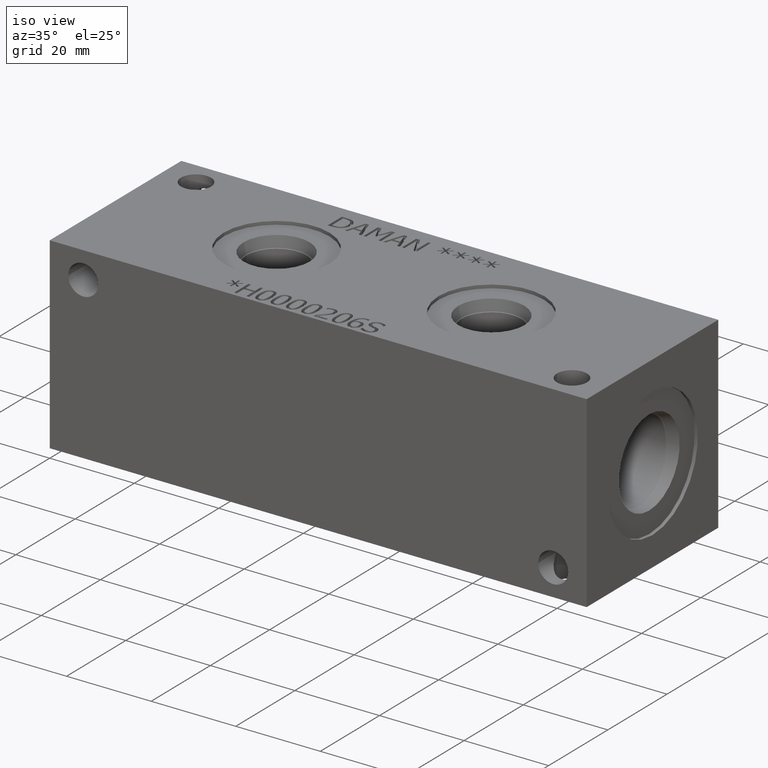
[diagram: clean part render]
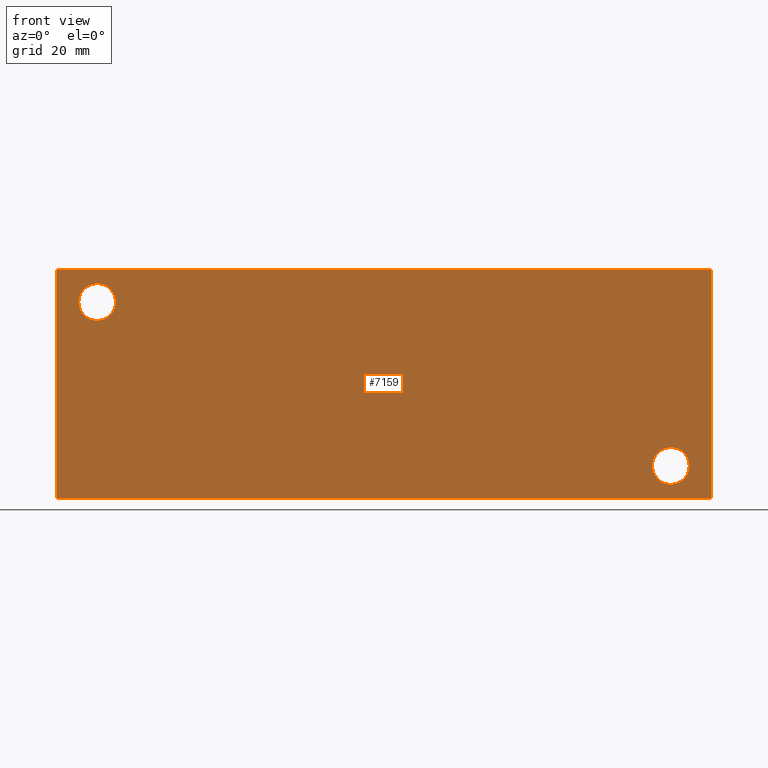
[diagram: tour spotlight — one face highlighted and labeled with its STEP entity id]
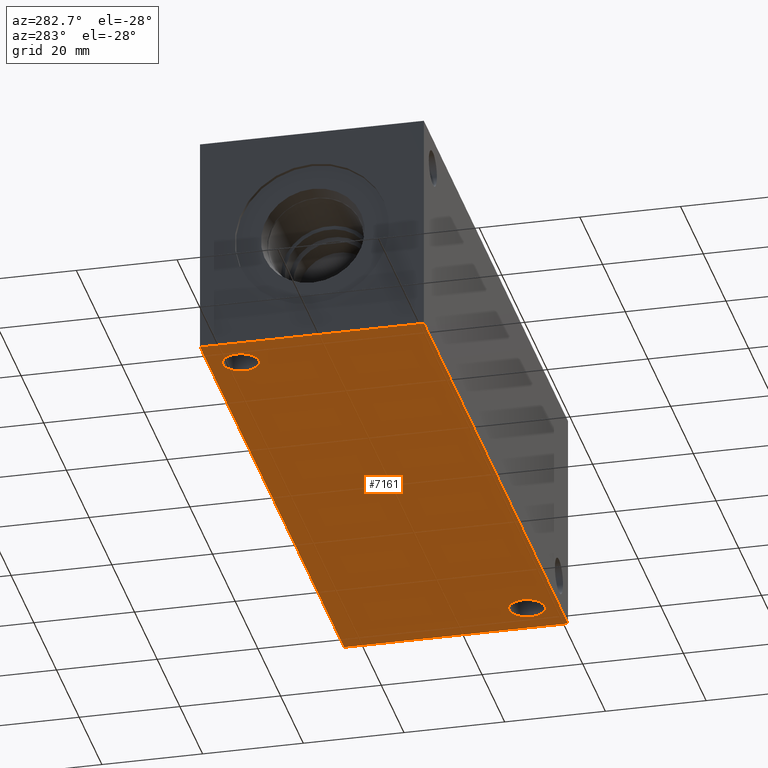
[diagram: tour spotlight — one face highlighted and labeled with its STEP entity id]
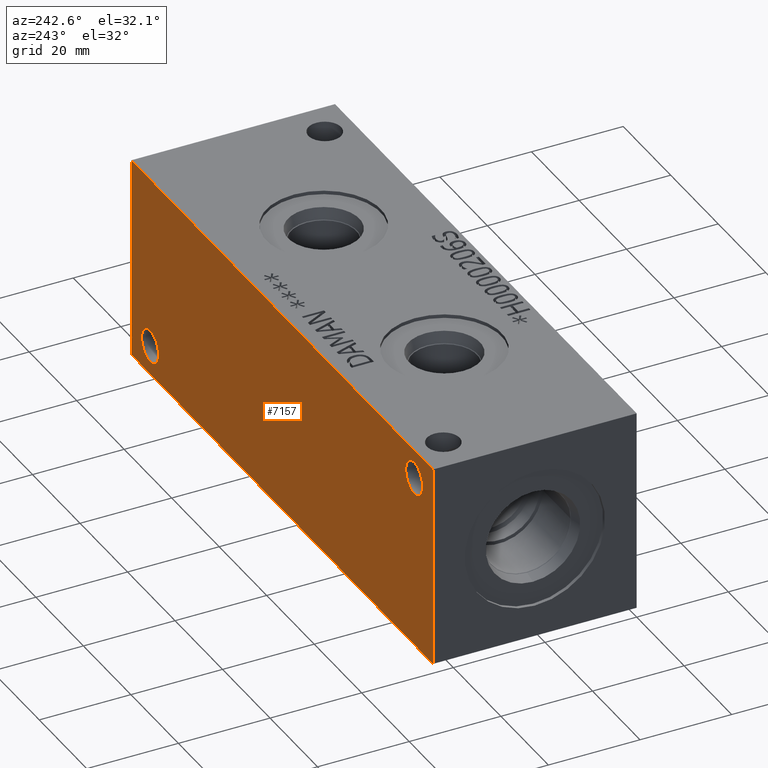
[diagram: tour spotlight — one face highlighted and labeled with its STEP entity id]
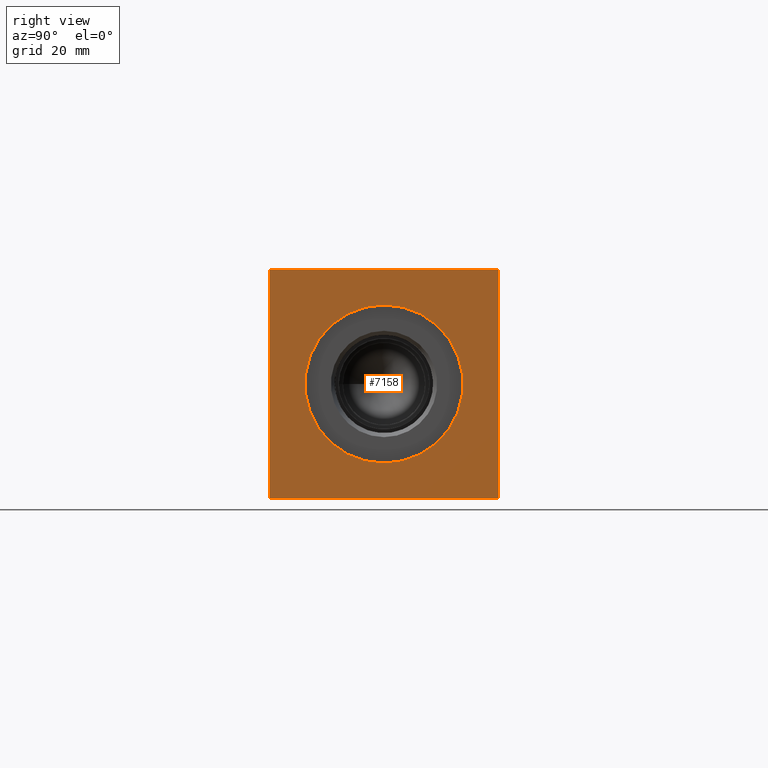
[diagram: tour spotlight — one face highlighted and labeled with its STEP entity id]
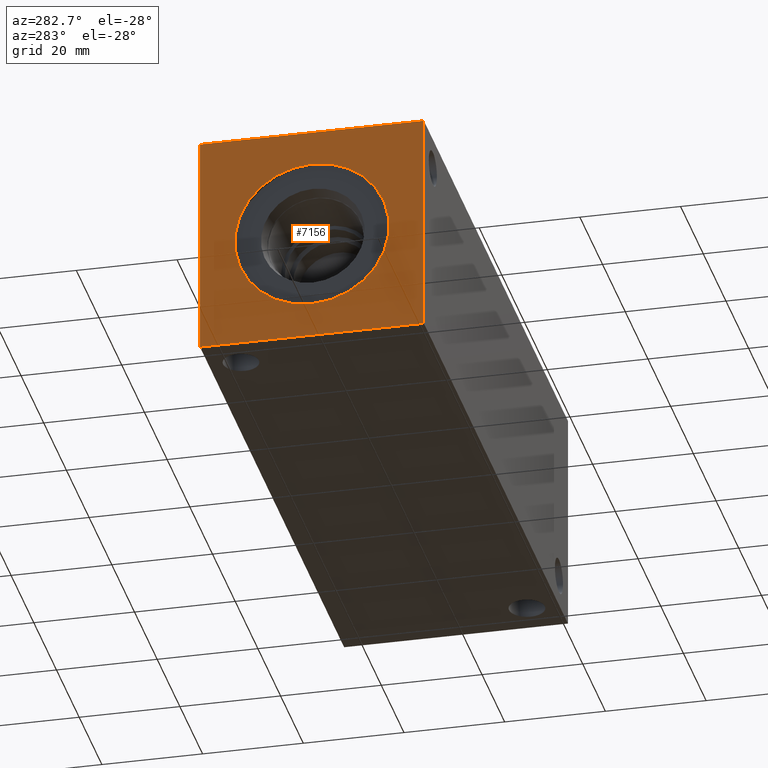
[diagram: tour spotlight — one face highlighted and labeled with its STEP entity id]
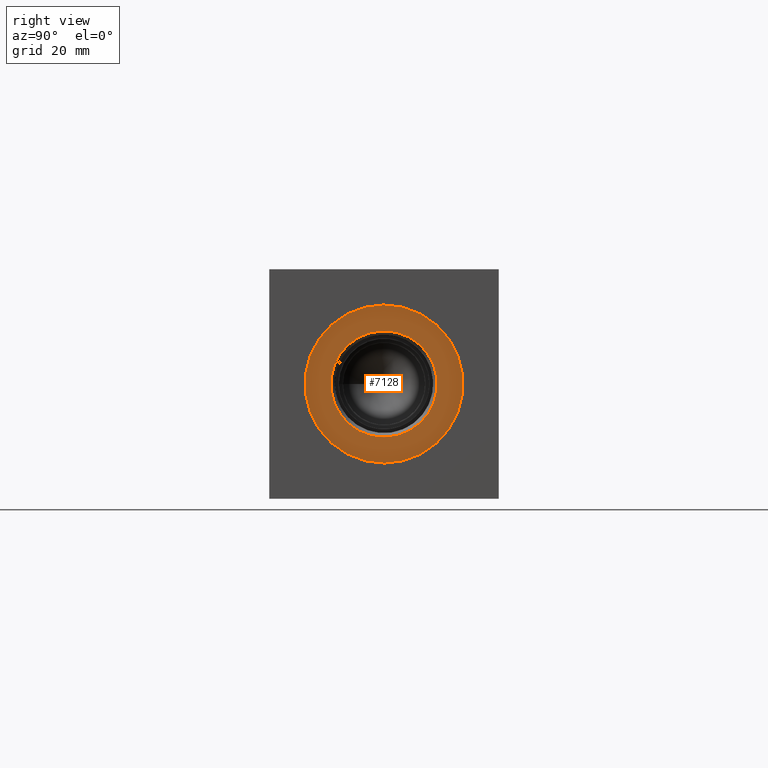
[diagram: tour spotlight — one face highlighted and labeled with its STEP entity id]
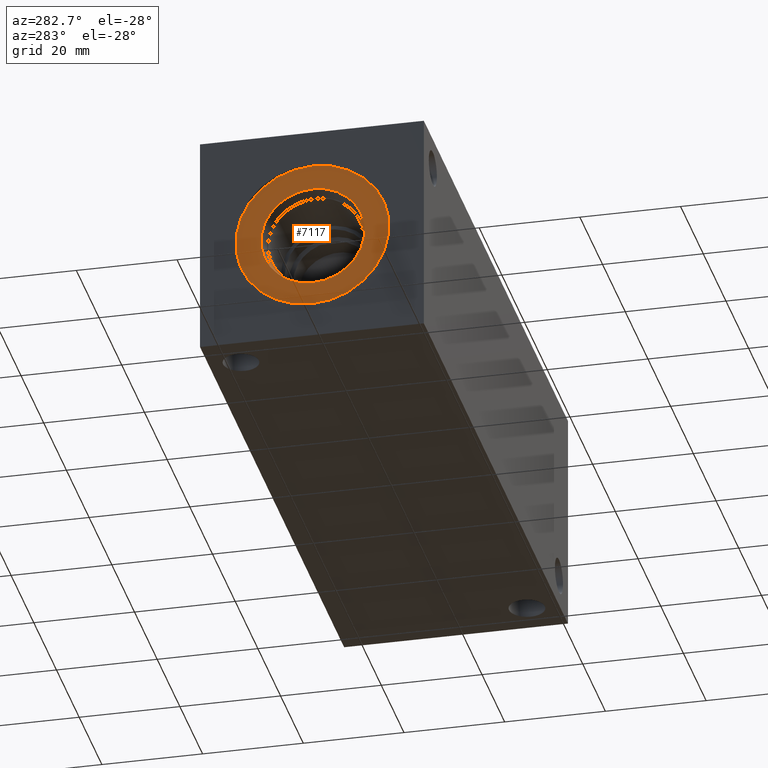
[diagram: tour spotlight — one face highlighted and labeled with its STEP entity id]
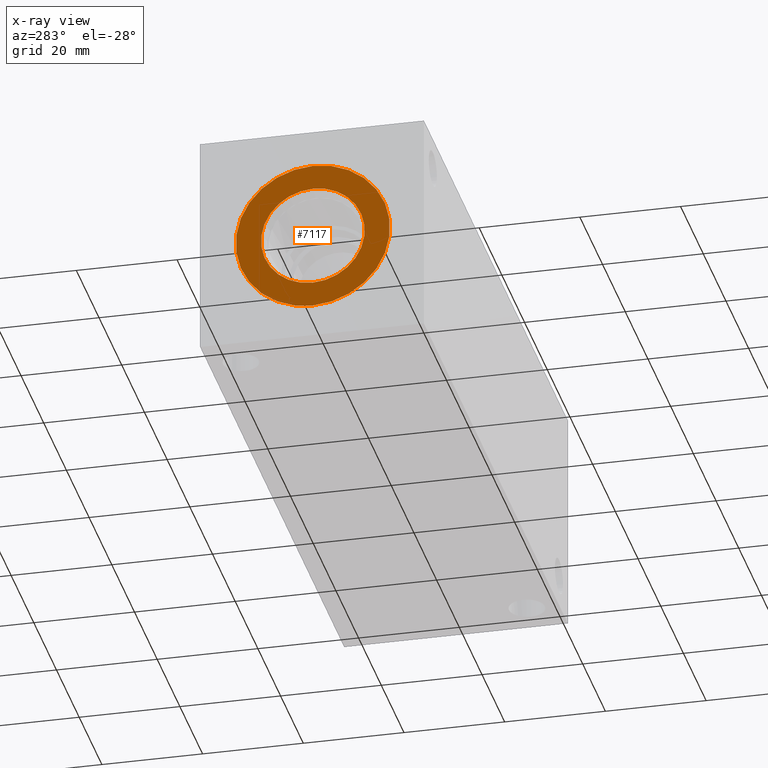
[diagram: x-ray of the same camera — body ghosted, this tour face saturated]
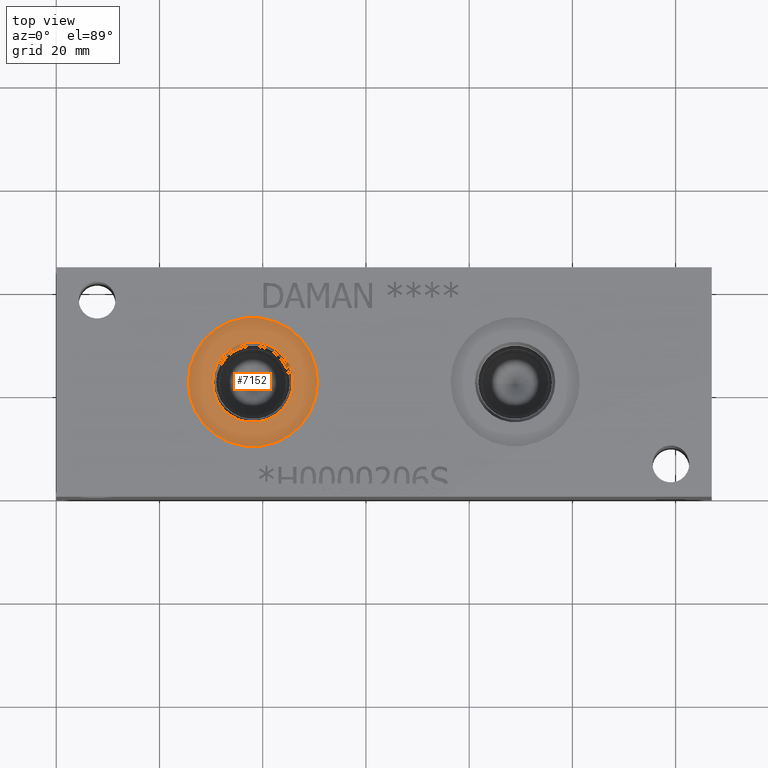
[diagram: tour spotlight — one face highlighted and labeled with its STEP entity id]
A machine part: a face-by-face anatomy tour. The part has 365 B-rep faces; the first image is the clean iso view, then the 8 largest visible faces are spotlighted one at a time (largest first), each with its STEP entity span.

Face 1 — front view, entity #7159. In plain terms, the highlighted planar face has unit normal (0, -1, 0).
Definition (entity closure, byte-faithful):
#74=CIRCLE('',#7378,3.5687);
#75=CIRCLE('',#7379,3.5687);
#77=CIRCLE('',#7388,3.5687);
#78=CIRCLE('',#7389,3.5687);
#200=FACE_BOUND('',#1318,.T.);
#201=FACE_BOUND('',#1319,.T.);
#908=FACE_OUTER_BOUND('',#1317,.T.);
#1317=EDGE_LOOP('',(#6274,#6275,#6276,#6277));
#1318=EDGE_LOOP('',(#6278,#6279));
#1319=EDGE_LOOP('',(#6280,#6281));
#1556=LINE('',#11170,#2221);
#1982=LINE('',#12379,#2647);
#1987=LINE('',#12388,#2652);
#1988=LINE('',#12390,#2653);
#2221=VECTOR('',#7865,10.);
#2647=VECTOR('',#8873,10.);
#2652=VECTOR('',#8882,10.);
#2653=VECTOR('',#8885,10.);
#2950=VERTEX_POINT('',#11168);
#2951=VERTEX_POINT('',#11169);
#3224=VERTEX_POINT('',#12100);
#3225=VERTEX_POINT('',#12101);
#3229=VERTEX_POINT('',#12118);
#3230=VERTEX_POINT('',#12119);
#3315=VERTEX_POINT('',#12377);
#3317=VERTEX_POINT('',#12386);
#3762=EDGE_CURVE('',#2950,#2951,#1556,.T.);
#4167=EDGE_CURVE('',#3224,#3225,#74,.T.);
#4168=EDGE_CURVE('',#3225,#3224,#75,.T.);
#4177=EDGE_CURVE('',#3229,#3230,#77,.T.);
#4178=EDGE_CURVE('',#3230,#3229,#78,.T.);
#4302=EDGE_CURVE('',#3315,#2950,#1982,.T.);
#4307=EDGE_CURVE('',#3317,#2951,#1987,.T.);
#4308=EDGE_CURVE('',#3315,#3317,#1988,.T.);
#6274=ORIENTED_EDGE('',*,*,#4308,.T.);
#6275=ORIENTED_EDGE('',*,*,#4307,.T.);
#6276=ORIENTED_EDGE('',*,*,#3762,.F.);
#6277=ORIENTED_EDGE('',*,*,#4302,.F.);
#6278=ORIENTED_EDGE('',*,*,#4167,.T.);
#6279=ORIENTED_EDGE('',*,*,#4168,.T.);
#6280=ORIENTED_EDGE('',*,*,#4177,.T.);
#6281=ORIENTED_EDGE('',*,*,#4178,.T.);
#6495=PLANE('',#7522);
#7159=ADVANCED_FACE('',(#908,#200,#201),#6495,.T.);
#7378=AXIS2_PLACEMENT_3D('',#12102,#8544,#8545);
#7379=AXIS2_PLACEMENT_3D('',#12103,#8546,#8547);
#7388=AXIS2_PLACEMENT_3D('',#12120,#8567,#8568);
#7389=AXIS2_PLACEMENT_3D('',#12121,#8569,#8570);
#7522=AXIS2_PLACEMENT_3D('',#12389,#8883,#8884);
#7865=DIRECTION('',(1.,0.,0.));
#8544=DIRECTION('center_axis',(0.,1.,0.));
#8545=DIRECTION('ref_axis',(1.,0.,0.));
#8546=DIRECTION('center_axis',(0.,1.,0.));
#8547=DIRECTION('ref_axis',(1.,0.,0.));
#8567=DIRECTION('center_axis',(0.,1.,0.));
#8568=DIRECTION('ref_axis',(1.,0.,0.));
#8569=DIRECTION('center_axis',(0.,1.,0.));
#8570=DIRECTION('ref_axis',(1.,0.,0.));
#8873=DIRECTION('',(0.,0.,1.));
#8882=DIRECTION('',(0.,0.,1.));
#8883=DIRECTION('center_axis',(0.,-1.,0.));
#8884=DIRECTION('ref_axis',(1.,0.,0.));
#8885=DIRECTION('',(1.,0.,0.));
#11168=CARTESIAN_POINT('',(0.,0.,44.45));
#11169=CARTESIAN_POINT('',(127.,0.,44.45));
#11170=CARTESIAN_POINT('',(0.,0.,44.45));
#12100=CARTESIAN_POINT('',(122.6439,0.,6.35));
#12101=CARTESIAN_POINT('',(115.5065,-1.77635683940025E-14,6.35));
#12102=CARTESIAN_POINT('Origin',(119.0752,0.,6.35));
#12103=CARTESIAN_POINT('Origin',(119.0752,0.,6.35));
#12118=CARTESIAN_POINT('',(11.4935,0.,38.1));
#12119=CARTESIAN_POINT('',(4.3561,-1.77635683940025E-14,38.1));
#12120=CARTESIAN_POINT('Origin',(7.9248,0.,38.1));
#12121=CARTESIAN_POINT('Origin',(7.9248,0.,38.1));
#12377=CARTESIAN_POINT('',(0.,0.,0.));
#12379=CARTESIAN_POINT('',(0.,0.,0.));
#12386=CARTESIAN_POINT('',(127.,0.,0.));
#12388=CARTESIAN_POINT('',(127.,0.,0.));
#12389=CARTESIAN_POINT('Origin',(0.,0.,0.));
#12390=CARTESIAN_POINT('',(0.,0.,0.));

Face 2 — auxiliary view, entity #7161. In plain terms, the highlighted planar face has unit normal (0, 0, 1).
Definition (entity closure, byte-faithful):
#120=CIRCLE('',#7460,3.5687);
#121=CIRCLE('',#7462,3.5687);
#202=FACE_BOUND('',#1322,.T.);
#203=FACE_BOUND('',#1323,.T.);
#910=FACE_OUTER_BOUND('',#1321,.T.);
#1321=EDGE_LOOP('',(#6285,#6286,#6287,#6288));
#1322=EDGE_LOOP('',(#6289));
#1323=EDGE_LOOP('',(#6290));
#1981=LINE('',#12378,#2646);
#1984=LINE('',#12383,#2649);
#1986=LINE('',#12387,#2651);
#1988=LINE('',#12390,#2653);
#2646=VECTOR('',#8872,10.);
#2649=VECTOR('',#8877,10.);
#2651=VECTOR('',#8881,10.);
#2653=VECTOR('',#8885,10.);
#3276=VERTEX_POINT('',#12258);
#3277=VERTEX_POINT('',#12262);
#3314=VERTEX_POINT('',#12376);
#3315=VERTEX_POINT('',#12377);
#3316=VERTEX_POINT('',#12382);
#3317=VERTEX_POINT('',#12386);
#4246=EDGE_CURVE('',#3276,#3276,#120,.T.);
#4248=EDGE_CURVE('',#3277,#3277,#121,.T.);
#4301=EDGE_CURVE('',#3314,#3315,#1981,.T.);
#4304=EDGE_CURVE('',#3316,#3314,#1984,.T.);
#4306=EDGE_CURVE('',#3317,#3316,#1986,.T.);
#4308=EDGE_CURVE('',#3315,#3317,#1988,.T.);
#6285=ORIENTED_EDGE('',*,*,#4308,.F.);
#6286=ORIENTED_EDGE('',*,*,#4301,.F.);
#6287=ORIENTED_EDGE('',*,*,#4304,.F.);
#6288=ORIENTED_EDGE('',*,*,#4306,.F.);
#6289=ORIENTED_EDGE('',*,*,#4246,.T.);
#6290=ORIENTED_EDGE('',*,*,#4248,.T.);
#6497=PLANE('',#7524);
#7161=ADVANCED_FACE('',(#910,#202,#203),#6497,.F.);
#7460=AXIS2_PLACEMENT_3D('',#12260,#8733,#8734);
#7462=AXIS2_PLACEMENT_3D('',#12264,#8738,#8739);
#7524=AXIS2_PLACEMENT_3D('',#12392,#8888,#8889);
#8733=DIRECTION('center_axis',(0.,0.,1.));
#8734=DIRECTION('ref_axis',(1.,0.,0.));
#8738=DIRECTION('center_axis',(0.,0.,1.));
#8739=DIRECTION('ref_axis',(1.,0.,0.));
#8872=DIRECTION('',(0.,-1.,0.));
#8877=DIRECTION('',(-1.,0.,0.));
#8881=DIRECTION('',(0.,1.,0.));
#8885=DIRECTION('',(1.,0.,0.));
#8888=DIRECTION('center_axis',(0.,0.,1.));
#8889=DIRECTION('ref_axis',(1.,0.,0.));
#12258=CARTESIAN_POINT('',(115.5065,6.35,0.));
#12260=CARTESIAN_POINT('Origin',(119.0752,6.35,0.));
#12262=CARTESIAN_POINT('',(4.3561,38.1,0.));
#12264=CARTESIAN_POINT('Origin',(7.9248,38.1,0.));
#12376=CARTESIAN_POINT('',(0.,44.45,0.));
#12377=CARTESIAN_POINT('',(0.,0.,0.));
#12378=CARTESIAN_POINT('',(0.,44.45,0.));
#12382=CARTESIAN_POINT('',(127.,44.45,0.));
#12383=CARTESIAN_POINT('',(127.,44.45,0.));
#12386=CARTESIAN_POINT('',(127.,0.,0.));
#12387=CARTESIAN_POINT('',(127.,0.,0.));
#12390=CARTESIAN_POINT('',(0.,0.,0.));
#12392=CARTESIAN_POINT('Origin',(63.5,22.225,0.));

Face 3 — auxiliary view, entity #7157. In plain terms, the highlighted planar face has unit normal (0, 1, 0).
Definition (entity closure, byte-faithful):
#76=CIRCLE('',#7385,3.5687);
#79=CIRCLE('',#7395,3.5687);
#197=FACE_BOUND('',#1313,.T.);
#198=FACE_BOUND('',#1314,.T.);
#906=FACE_OUTER_BOUND('',#1312,.T.);
#1312=EDGE_LOOP('',(#6262,#6263,#6264,#6265));
#1313=EDGE_LOOP('',(#6266));
#1314=EDGE_LOOP('',(#6267));
#1558=LINE('',#11174,#2223);
#1983=LINE('',#12380,#2648);
#1984=LINE('',#12383,#2649);
#1985=LINE('',#12384,#2650);
#2223=VECTOR('',#7867,10.);
#2648=VECTOR('',#8874,10.);
#2649=VECTOR('',#8877,10.);
#2650=VECTOR('',#8878,10.);
#2952=VERTEX_POINT('',#11171);
#2953=VERTEX_POINT('',#11173);
#3228=VERTEX_POINT('',#12112);
#3233=VERTEX_POINT('',#12130);
#3314=VERTEX_POINT('',#12376);
#3316=VERTEX_POINT('',#12382);
#3764=EDGE_CURVE('',#2952,#2953,#1558,.T.);
#4175=EDGE_CURVE('',#3228,#3228,#76,.T.);
#4185=EDGE_CURVE('',#3233,#3233,#79,.T.);
#4303=EDGE_CURVE('',#3314,#2953,#1983,.T.);
#4304=EDGE_CURVE('',#3316,#3314,#1984,.T.);
#4305=EDGE_CURVE('',#3316,#2952,#1985,.T.);
#6262=ORIENTED_EDGE('',*,*,#4304,.T.);
#6263=ORIENTED_EDGE('',*,*,#4303,.T.);
#6264=ORIENTED_EDGE('',*,*,#3764,.F.);
#6265=ORIENTED_EDGE('',*,*,#4305,.F.);
#6266=ORIENTED_EDGE('',*,*,#4175,.T.);
#6267=ORIENTED_EDGE('',*,*,#4185,.T.);
#6493=PLANE('',#7520);
#7157=ADVANCED_FACE('',(#906,#197,#198),#6493,.T.);
#7385=AXIS2_PLACEMENT_3D('',#12114,#8560,#8561);
#7395=AXIS2_PLACEMENT_3D('',#12132,#8583,#8584);
#7520=AXIS2_PLACEMENT_3D('',#12381,#8875,#8876);
#7867=DIRECTION('',(-1.,0.,0.));
#8560=DIRECTION('center_axis',(0.,-1.,0.));
#8561=DIRECTION('ref_axis',(1.,0.,0.));
#8583=DIRECTION('center_axis',(0.,-1.,0.));
#8584=DIRECTION('ref_axis',(1.,0.,0.));
#8874=DIRECTION('',(0.,0.,1.));
#8875=DIRECTION('center_axis',(0.,1.,0.));
#8876=DIRECTION('ref_axis',(-1.,0.,0.));
#8877=DIRECTION('',(-1.,0.,0.));
#8878=DIRECTION('',(0.,0.,1.));
#11171=CARTESIAN_POINT('',(127.,44.45,44.45));
#11173=CARTESIAN_POINT('',(0.,44.45,44.45));
#11174=CARTESIAN_POINT('',(127.,44.45,44.45));
#12112=CARTESIAN_POINT('',(115.5065,44.45,6.35));
#12114=CARTESIAN_POINT('Origin',(119.0752,44.45,6.35));
#12130=CARTESIAN_POINT('',(4.3561,44.45,38.1));
#12132=CARTESIAN_POINT('Origin',(7.9248,44.45,38.1));
#12376=CARTESIAN_POINT('',(0.,44.45,0.));
#12380=CARTESIAN_POINT('',(0.,44.45,0.));
#12381=CARTESIAN_POINT('Origin',(127.,44.45,0.));
#12382=CARTESIAN_POINT('',(127.,44.45,0.));
#12383=CARTESIAN_POINT('',(127.,44.45,0.));
#12384=CARTESIAN_POINT('',(127.,44.45,0.));

Face 4 — right view, entity #7158. In plain terms, the highlighted planar face has unit normal (1, 0, 0).
Definition (entity closure, byte-faithful):
#110=CIRCLE('',#7445,15.3162);
#111=CIRCLE('',#7446,15.3162);
#199=FACE_BOUND('',#1316,.T.);
#907=FACE_OUTER_BOUND('',#1315,.T.);
#1315=EDGE_LOOP('',(#6268,#6269,#6270,#6271));
#1316=EDGE_LOOP('',(#6272,#6273));
#1557=LINE('',#11172,#2222);
#1985=LINE('',#12384,#2650);
#1986=LINE('',#12387,#2651);
#1987=LINE('',#12388,#2652);
#2222=VECTOR('',#7866,10.);
#2650=VECTOR('',#8878,10.);
#2651=VECTOR('',#8881,10.);
#2652=VECTOR('',#8882,10.);
#2951=VERTEX_POINT('',#11169);
#2952=VERTEX_POINT('',#11171);
#3266=VERTEX_POINT('',#12229);
#3267=VERTEX_POINT('',#12230);
#3316=VERTEX_POINT('',#12382);
#3317=VERTEX_POINT('',#12386);
#3763=EDGE_CURVE('',#2951,#2952,#1557,.T.);
#4231=EDGE_CURVE('',#3266,#3267,#110,.T.);
#4232=EDGE_CURVE('',#3267,#3266,#111,.T.);
#4305=EDGE_CURVE('',#3316,#2952,#1985,.T.);
#4306=EDGE_CURVE('',#3317,#3316,#1986,.T.);
#4307=EDGE_CURVE('',#3317,#2951,#1987,.T.);
#6268=ORIENTED_EDGE('',*,*,#4306,.T.);
#6269=ORIENTED_EDGE('',*,*,#4305,.T.);
#6270=ORIENTED_EDGE('',*,*,#3763,.F.);
#6271=ORIENTED_EDGE('',*,*,#4307,.F.);
#6272=ORIENTED_EDGE('',*,*,#4231,.T.);
#6273=ORIENTED_EDGE('',*,*,#4232,.T.);
#6494=PLANE('',#7521);
#7158=ADVANCED_FACE('',(#907,#199),#6494,.T.);
#7445=AXIS2_PLACEMENT_3D('',#12231,#8698,#8699);
#7446=AXIS2_PLACEMENT_3D('',#12232,#8700,#8701);
#7521=AXIS2_PLACEMENT_3D('',#12385,#8879,#8880);
#7866=DIRECTION('',(0.,1.,0.));
#8698=DIRECTION('center_axis',(-1.,0.,0.));
#8699=DIRECTION('ref_axis',(0.,0.,-1.));
#8700=DIRECTION('center_axis',(-1.,0.,0.));
#8701=DIRECTION('ref_axis',(0.,0.,-1.));
#8878=DIRECTION('',(0.,0.,1.));
#8879=DIRECTION('center_axis',(1.,0.,0.));
#8880=DIRECTION('ref_axis',(0.,1.,0.));
#8881=DIRECTION('',(0.,1.,0.));
#8882=DIRECTION('',(0.,0.,1.));
#11169=CARTESIAN_POINT('',(127.,0.,44.45));
#11171=CARTESIAN_POINT('',(127.,44.45,44.45));
#11172=CARTESIAN_POINT('',(127.,0.,44.45));
#12229=CARTESIAN_POINT('',(127.,22.225,6.9088));
#12230=CARTESIAN_POINT('',(127.,22.225,37.5412));
#12231=CARTESIAN_POINT('Origin',(127.,22.225,22.225));
#12232=CARTESIAN_POINT('Origin',(127.,22.225,22.225));
#12382=CARTESIAN_POINT('',(127.,44.45,0.));
#12384=CARTESIAN_POINT('',(127.,44.45,0.));
#12385=CARTESIAN_POINT('Origin',(127.,0.,0.));
#12386=CARTESIAN_POINT('',(127.,0.,0.));
#12387=CARTESIAN_POINT('',(127.,0.,0.));
#12388=CARTESIAN_POINT('',(127.,0.,0.));

Face 5 — auxiliary view, entity #7156. In plain terms, the highlighted planar face has unit normal (-1, 0, 0).
Definition (entity closure, byte-faithful):
#90=CIRCLE('',#7414,15.3162);
#91=CIRCLE('',#7415,15.3162);
#196=FACE_BOUND('',#1311,.T.);
#905=FACE_OUTER_BOUND('',#1310,.T.);
#1310=EDGE_LOOP('',(#6256,#6257,#6258,#6259));
#1311=EDGE_LOOP('',(#6260,#6261));
#1559=LINE('',#11175,#2224);
#1981=LINE('',#12378,#2646);
#1982=LINE('',#12379,#2647);
#1983=LINE('',#12380,#2648);
#2224=VECTOR('',#7868,10.);
#2646=VECTOR('',#8872,10.);
#2647=VECTOR('',#8873,10.);
#2648=VECTOR('',#8874,10.);
#2950=VERTEX_POINT('',#11168);
#2953=VERTEX_POINT('',#11173);
#3245=VERTEX_POINT('',#12168);
#3246=VERTEX_POINT('',#12169);
#3314=VERTEX_POINT('',#12376);
#3315=VERTEX_POINT('',#12377);
#3765=EDGE_CURVE('',#2953,#2950,#1559,.T.);
#4202=EDGE_CURVE('',#3245,#3246,#90,.T.);
#4203=EDGE_CURVE('',#3246,#3245,#91,.T.);
#4301=EDGE_CURVE('',#3314,#3315,#1981,.T.);
#4302=EDGE_CURVE('',#3315,#2950,#1982,.T.);
#4303=EDGE_CURVE('',#3314,#2953,#1983,.T.);
#6256=ORIENTED_EDGE('',*,*,#4301,.T.);
#6257=ORIENTED_EDGE('',*,*,#4302,.T.);
#6258=ORIENTED_EDGE('',*,*,#3765,.F.);
#6259=ORIENTED_EDGE('',*,*,#4303,.F.);
#6260=ORIENTED_EDGE('',*,*,#4202,.T.);
#6261=ORIENTED_EDGE('',*,*,#4203,.T.);
#6492=PLANE('',#7519);
#7156=ADVANCED_FACE('',(#905,#196),#6492,.T.);
#7414=AXIS2_PLACEMENT_3D('',#12170,#8627,#8628);
#7415=AXIS2_PLACEMENT_3D('',#12171,#8629,#8630);
#7519=AXIS2_PLACEMENT_3D('',#12375,#8870,#8871);
#7868=DIRECTION('',(0.,-1.,0.));
#8627=DIRECTION('center_axis',(1.,0.,0.));
#8628=DIRECTION('ref_axis',(0.,0.,1.));
#8629=DIRECTION('center_axis',(1.,0.,0.));
#8630=DIRECTION('ref_axis',(0.,0.,1.));
#8870=DIRECTION('center_axis',(-1.,0.,0.));
#8871=DIRECTION('ref_axis',(0.,-1.,0.));
#8872=DIRECTION('',(0.,-1.,0.));
#8873=DIRECTION('',(0.,0.,1.));
#8874=DIRECTION('',(0.,0.,1.));
#11168=CARTESIAN_POINT('',(0.,0.,44.45));
#11173=CARTESIAN_POINT('',(0.,44.45,44.45));
#11175=CARTESIAN_POINT('',(0.,44.45,44.45));
#12168=CARTESIAN_POINT('',(0.,22.225,37.5412));
#12169=CARTESIAN_POINT('',(0.,22.225,6.9088));
#12170=CARTESIAN_POINT('Origin',(0.,22.225,22.225));
#12171=CARTESIAN_POINT('Origin',(0.,22.225,22.225));
#12375=CARTESIAN_POINT('Origin',(0.,44.45,0.));
#12376=CARTESIAN_POINT('',(0.,44.45,0.));
#12377=CARTESIAN_POINT('',(0.,0.,0.));
#12378=CARTESIAN_POINT('',(0.,44.45,0.));
#12379=CARTESIAN_POINT('',(0.,0.,0.));
#12380=CARTESIAN_POINT('',(0.,44.45,0.));

Face 6 — right view, entity #7128. In plain terms, the highlighted planar face has unit normal (-1, 0, 0).
Definition (entity closure, byte-faithful):
#112=CIRCLE('',#7447,15.3162);
#113=CIRCLE('',#7448,15.3162);
#114=CIRCLE('',#7450,10.2997);
#115=CIRCLE('',#7451,10.2997);
#191=FACE_BOUND('',#1278,.T.);
#877=FACE_OUTER_BOUND('',#1277,.T.);
#1277=EDGE_LOOP('',(#6116,#6117));
#1278=EDGE_LOOP('',(#6118,#6119));
#3268=VERTEX_POINT('',#12233);
#3269=VERTEX_POINT('',#12235);
#3270=VERTEX_POINT('',#12239);
#3271=VERTEX_POINT('',#12240);
#4234=EDGE_CURVE('',#3268,#3269,#112,.T.);
#4235=EDGE_CURVE('',#3269,#3268,#113,.T.);
#4236=EDGE_CURVE('',#3270,#3271,#114,.T.);
#4237=EDGE_CURVE('',#3271,#3270,#115,.T.);
#6116=ORIENTED_EDGE('',*,*,#4235,.F.);
#6117=ORIENTED_EDGE('',*,*,#4234,.F.);
#6118=ORIENTED_EDGE('',*,*,#4236,.T.);
#6119=ORIENTED_EDGE('',*,*,#4237,.T.);
#6487=PLANE('',#7449);
#7128=ADVANCED_FACE('',(#877,#191),#6487,.F.);
#7447=AXIS2_PLACEMENT_3D('',#12236,#8703,#8704);
#7448=AXIS2_PLACEMENT_3D('',#12237,#8705,#8706);
#7449=AXIS2_PLACEMENT_3D('',#12238,#8707,#8708);
#7450=AXIS2_PLACEMENT_3D('',#12241,#8709,#8710);
#7451=AXIS2_PLACEMENT_3D('',#12242,#8711,#8712);
#8703=DIRECTION('center_axis',(-1.,0.,0.));
#8704=DIRECTION('ref_axis',(0.,0.,1.));
#8705=DIRECTION('center_axis',(-1.,0.,0.));
#8706=DIRECTION('ref_axis',(0.,0.,1.));
#8707=DIRECTION('center_axis',(-1.,0.,0.));
#8708=DIRECTION('ref_axis',(0.,0.,1.));
#8709=DIRECTION('center_axis',(-1.,0.,0.));
#8710=DIRECTION('ref_axis',(0.,0.,1.));
#8711=DIRECTION('center_axis',(-1.,0.,0.));
#8712=DIRECTION('ref_axis',(0.,0.,1.));
#12233=CARTESIAN_POINT('',(126.2126,22.225,37.5412));
#12235=CARTESIAN_POINT('',(126.2126,22.225,6.9088));
#12236=CARTESIAN_POINT('Origin',(126.2126,22.225,22.225));
#12237=CARTESIAN_POINT('Origin',(126.2126,22.225,22.225));
#12238=CARTESIAN_POINT('Origin',(126.2126,22.225,11.9253));
#12239=CARTESIAN_POINT('',(126.2126,22.225,11.9253));
#12240=CARTESIAN_POINT('',(126.2126,22.225,32.5247));
#12241=CARTESIAN_POINT('Origin',(126.2126,22.225,22.225));
#12242=CARTESIAN_POINT('Origin',(126.2126,22.225,22.225));

Face 7 — auxiliary view, entity #7117. An x-ray twin of the same camera follows (body ghosted, this face saturated) — the face is partly hidden behind the body. In plain terms, the highlighted planar face has unit normal (1, 0, 0).
Definition (entity closure, byte-faithful):
#92=CIRCLE('',#7416,15.3162);
#93=CIRCLE('',#7417,15.3162);
#94=CIRCLE('',#7419,10.2997);
#95=CIRCLE('',#7420,10.2997);
#189=FACE_BOUND('',#1265,.T.);
#866=FACE_OUTER_BOUND('',#1264,.T.);
#1264=EDGE_LOOP('',(#6060,#6061));
#1265=EDGE_LOOP('',(#6062,#6063));
#3247=VERTEX_POINT('',#12172);
#3248=VERTEX_POINT('',#12174);
#3249=VERTEX_POINT('',#12178);
#3250=VERTEX_POINT('',#12179);
#4205=EDGE_CURVE('',#3247,#3248,#92,.T.);
#4206=EDGE_CURVE('',#3248,#3247,#93,.T.);
#4207=EDGE_CURVE('',#3249,#3250,#94,.T.);
#4208=EDGE_CURVE('',#3250,#3249,#95,.T.);
#6060=ORIENTED_EDGE('',*,*,#4206,.F.);
#6061=ORIENTED_EDGE('',*,*,#4205,.F.);
#6062=ORIENTED_EDGE('',*,*,#4207,.T.);
#6063=ORIENTED_EDGE('',*,*,#4208,.T.);
#6485=PLANE('',#7418);
#7117=ADVANCED_FACE('',(#866,#189),#6485,.F.);
#7416=AXIS2_PLACEMENT_3D('',#12175,#8632,#8633);
#7417=AXIS2_PLACEMENT_3D('',#12176,#8634,#8635);
#7418=AXIS2_PLACEMENT_3D('',#12177,#8636,#8637);
#7419=AXIS2_PLACEMENT_3D('',#12180,#8638,#8639);
#7420=AXIS2_PLACEMENT_3D('',#12181,#8640,#8641);
#8632=DIRECTION('center_axis',(1.,0.,0.));
#8633=DIRECTION('ref_axis',(0.,0.,-1.));
#8634=DIRECTION('center_axis',(1.,0.,0.));
#8635=DIRECTION('ref_axis',(0.,0.,-1.));
#8636=DIRECTION('center_axis',(1.,0.,0.));
#8637=DIRECTION('ref_axis',(0.,0.,-1.));
#8638=DIRECTION('center_axis',(1.,0.,0.));
#8639=DIRECTION('ref_axis',(0.,0.,-1.));
#8640=DIRECTION('center_axis',(1.,0.,0.));
#8641=DIRECTION('ref_axis',(0.,0.,-1.));
#12172=CARTESIAN_POINT('',(0.7874,22.225,6.9088));
#12174=CARTESIAN_POINT('',(0.7874,22.225,37.5412));
#12175=CARTESIAN_POINT('Origin',(0.7874,22.225,22.225));
#12176=CARTESIAN_POINT('Origin',(0.7874,22.225,22.225));
#12177=CARTESIAN_POINT('Origin',(0.7874,22.225,32.5247));
#12178=CARTESIAN_POINT('',(0.7874,22.225,32.5247));
#12179=CARTESIAN_POINT('',(0.7874,22.225,11.9253));
#12180=CARTESIAN_POINT('Origin',(0.7874,22.225,22.225));
#12181=CARTESIAN_POINT('Origin',(0.7874,22.225,22.225));

Face 8 — top view, entity #7152. In plain terms, the highlighted planar face has unit normal (0, 0, -1).
Definition (entity closure, byte-faithful):
#148=CIRCLE('',#7507,12.5095);
#149=CIRCLE('',#7508,12.5095);
#150=CIRCLE('',#7510,7.7978);
#151=CIRCLE('',#7511,7.7978);
#195=FACE_BOUND('',#1306,.T.);
#901=FACE_OUTER_BOUND('',#1305,.T.);
#1305=EDGE_LOOP('',(#6235,#6236));
#1306=EDGE_LOOP('',(#6237,#6238));
#3306=VERTEX_POINT('',#12351);
#3307=VERTEX_POINT('',#12353);
#3308=VERTEX_POINT('',#12357);
#3309=VERTEX_POINT('',#12358);
#4290=EDGE_CURVE('',#3306,#3307,#148,.T.);
#4291=EDGE_CURVE('',#3307,#3306,#149,.T.);
#4292=EDGE_CURVE('',#3308,#3309,#150,.T.);
#4293=EDGE_CURVE('',#3309,#3308,#151,.T.);
#6235=ORIENTED_EDGE('',*,*,#4291,.F.);
#6236=ORIENTED_EDGE('',*,*,#4290,.F.);
#6237=ORIENTED_EDGE('',*,*,#4292,.T.);
#6238=ORIENTED_EDGE('',*,*,#4293,.T.);
#6491=PLANE('',#7509);
#7152=ADVANCED_FACE('',(#901,#195),#6491,.F.);
#7507=AXIS2_PLACEMENT_3D('',#12354,#8843,#8844);
#7508=AXIS2_PLACEMENT_3D('',#12355,#8845,#8846);
#7509=AXIS2_PLACEMENT_3D('',#12356,#8847,#8848);
#7510=AXIS2_PLACEMENT_3D('',#12359,#8849,#8850);
#7511=AXIS2_PLACEMENT_3D('',#12360,#8851,#8852);
#8843=DIRECTION('center_axis',(0.,0.,-1.));
#8844=DIRECTION('ref_axis',(1.,0.,0.));
#8845=DIRECTION('center_axis',(0.,0.,-1.));
#8846=DIRECTION('ref_axis',(1.,0.,0.));
#8847=DIRECTION('center_axis',(0.,0.,-1.));
#8848=DIRECTION('ref_axis',(-1.,0.,0.));
#8849=DIRECTION('center_axis',(0.,0.,-1.));
#8850=DIRECTION('ref_axis',(1.,0.,0.));
#8851=DIRECTION('center_axis',(0.,0.,-1.));
#8852=DIRECTION('ref_axis',(1.,0.,0.));
#12351=CARTESIAN_POINT('',(25.5905,22.225,43.6626));
#12353=CARTESIAN_POINT('',(50.6095,22.225,43.6626));
#12354=CARTESIAN_POINT('Origin',(38.1,22.225,43.6626));
#12355=CARTESIAN_POINT('Origin',(38.1,22.225,43.6626));
#12356=CARTESIAN_POINT('Origin',(45.8978,22.225,43.6626));
#12357=CARTESIAN_POINT('',(45.8978,22.225,43.6626));
#12358=CARTESIAN_POINT('',(30.3022,22.225,43.6626));
#12359=CARTESIAN_POINT('Origin',(38.1,22.225,43.6626));
#12360=CARTESIAN_POINT('Origin',(38.1,22.225,43.6626));